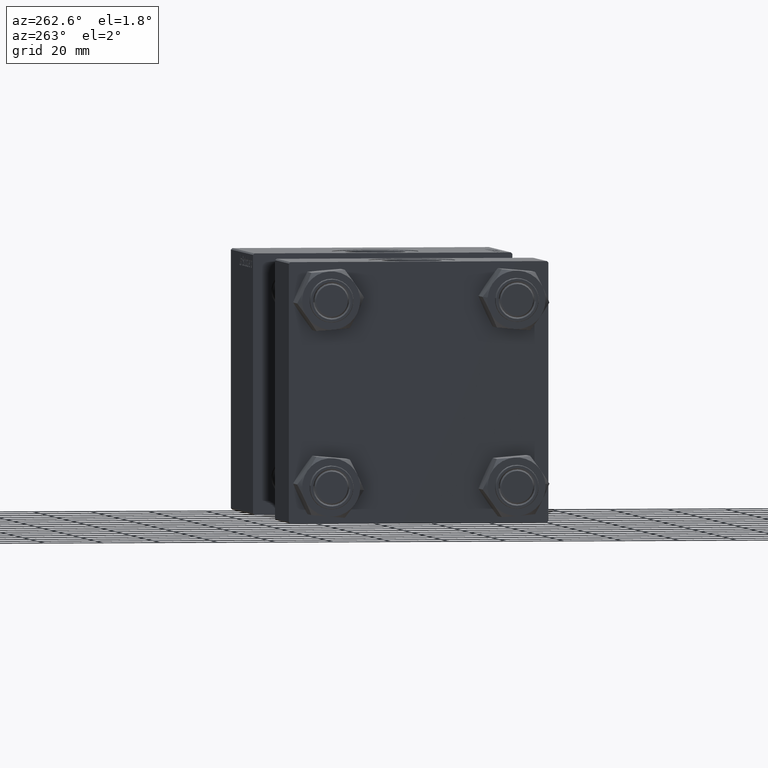
[diagram: clean part render]
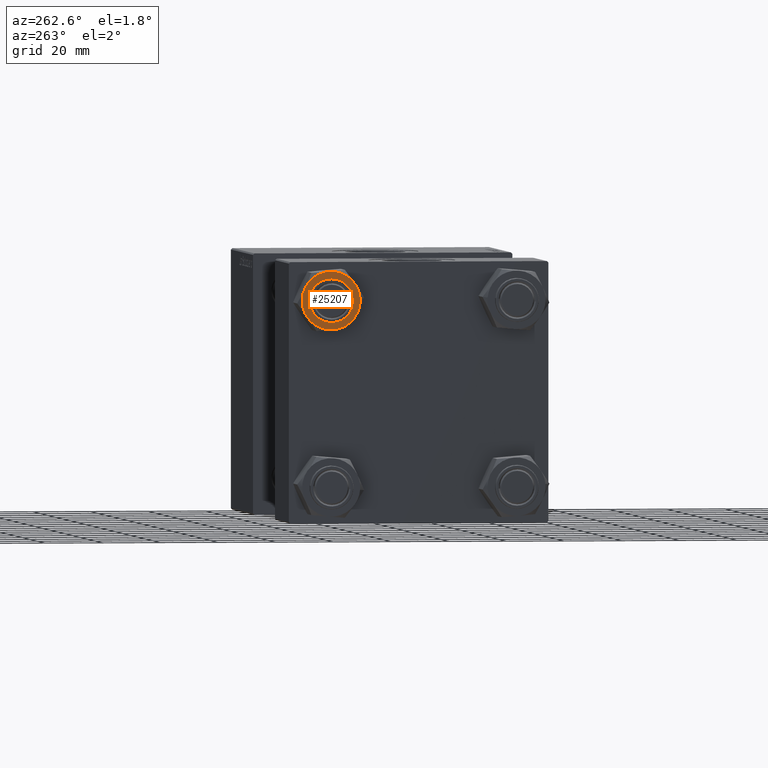
[diagram: same view with one face highlighted and labeled with its STEP entity id]
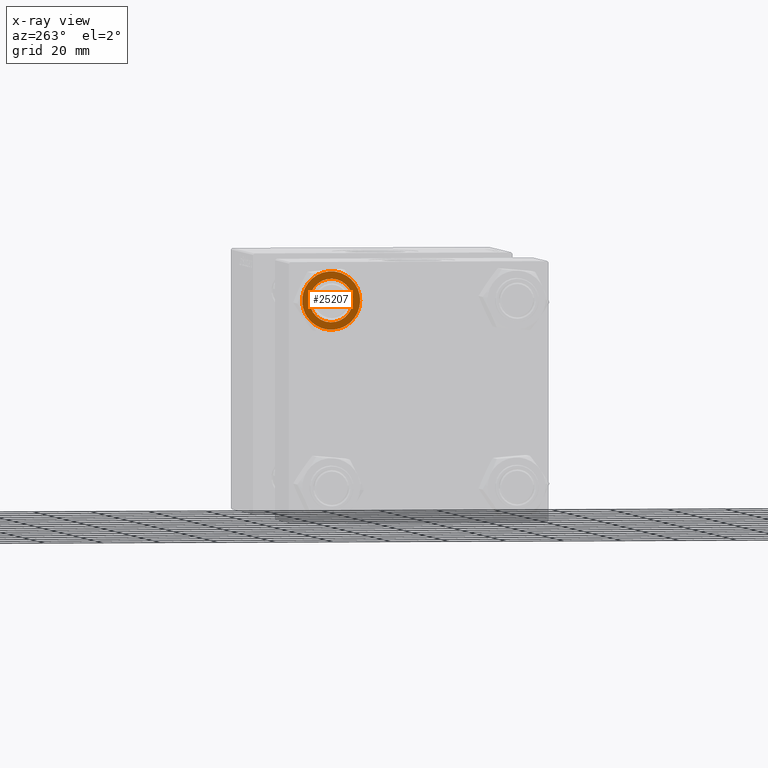
[diagram: x-ray of the same camera — body ghosted, the highlighted face saturated]
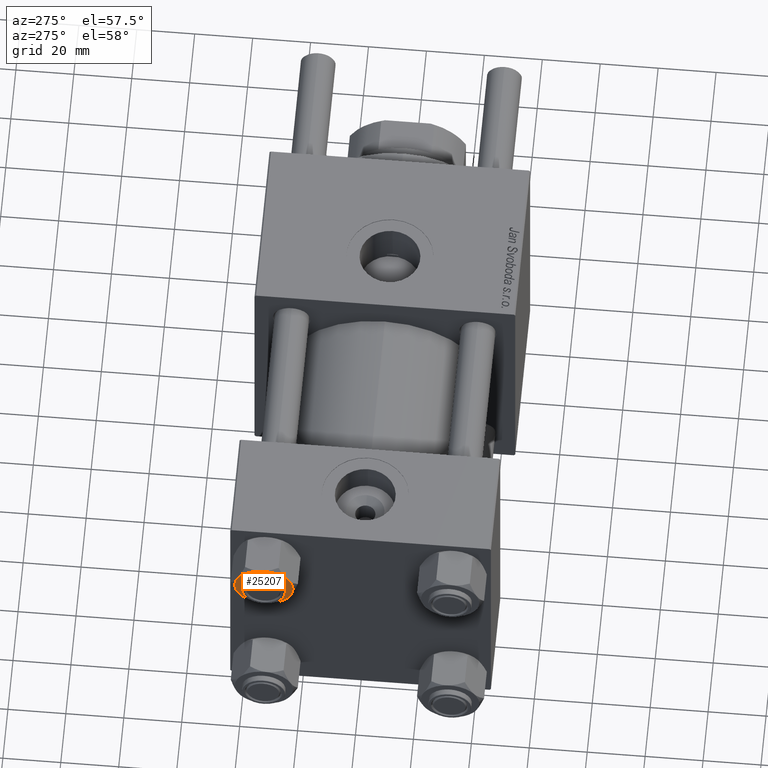
[diagram: same view with one face highlighted and labeled with its STEP entity id]
A machine part, auxiliary view. The second image highlights one B-rep face of the part: STEP entity #25207.
The next image is the same camera in x-ray: the body ghosted, the highlighted face saturated — about 0% of this face is hidden behind the body in this view.
A second angle (auxiliary view) of the same face is appended — the face is thin or edge-on in the first view.
In plain terms, the highlighted planar face has unit normal (1, -0, 0).
Its self-contained STEP definition (entity closure, byte-faithful):
#553 = CARTESIAN_POINT ( 'NONE',  ( 0.000000000000000000, 0.000000000000000000, 0.000000000000000000 ) ) ;
#707 = CARTESIAN_POINT ( 'NONE',  ( 0.000000000000000000, 0.000000000000000000, 0.000000000000000000 ) ) ;
#821 = ORIENTED_EDGE ( 'NONE', *, *, #52184, .T. ) ;
#1143 = AXIS2_PLACEMENT_3D ( 'NONE', #2854, #50996, #3431 ) ;
#2452 = DIRECTION ( 'NONE',  ( -1.000000000000000000, 0.000000000000000000, -0.000000000000000000 ) ) ;
#2854 = CARTESIAN_POINT ( 'NONE',  ( 0.000000000000000000, 0.000000000000000000, 0.000000000000000000 ) ) ;
#3181 = AXIS2_PLACEMENT_3D ( 'NONE', #22420, #13263, #47373 ) ;
#3431 = DIRECTION ( 'NONE',  ( -1.000000000000000000, 0.000000000000000000, 0.000000000000000000 ) ) ;
#4294 = DIRECTION ( 'NONE',  ( -1.000000000000000000, 0.000000000000000000, 0.000000000000000000 ) ) ;
#5294 = EDGE_LOOP ( 'NONE', ( #12454, #37392 ) ) ;
#5948 = EDGE_CURVE ( 'NONE', #15944, #46584, #15836, .T. ) ;
#6438 = VERTEX_POINT ( 'NONE', #7018 ) ;
#7018 = CARTESIAN_POINT ( 'NONE',  ( 0.000000000000000000, 10.06321519197518022, 0.000000000000000000 ) ) ;
#7144 = CARTESIAN_POINT ( 'NONE',  ( 0.000000000000000000, 0.000000000000000000, 0.000000000000000000 ) ) ;
#7376 = ORIENTED_EDGE ( 'NONE', *, *, #50941, .F. ) ;
#7517 = AXIS2_PLACEMENT_3D ( 'NONE', #553, #9717, #43834 ) ;
#9569 = CIRCLE ( 'NONE', #18685, 10.06321519197517844 ) ;
#9717 = DIRECTION ( 'NONE',  ( 0.000000000000000000, 0.000000000000000000, 1.000000000000000000 ) ) ;
#10322 = DIRECTION ( 'NONE',  ( 0.000000000000000000, -0.000000000000000000, -1.000000000000000000 ) ) ;
#10653 = ORIENTED_EDGE ( 'NONE', *, *, #22953, .F. ) ;
#10675 = VERTEX_POINT ( 'NONE', #33634 ) ;
#11406 = DIRECTION ( 'NONE',  ( -1.000000000000000000, 0.000000000000000000, 0.000000000000000000 ) ) ;
#11643 = CIRCLE ( 'NONE', #52808, 10.06321519197517844 ) ;
#12454 = ORIENTED_EDGE ( 'NONE', *, *, #40360, .F. ) ;
#12461 = VERTEX_POINT ( 'NONE', #23556 ) ;
#13263 = DIRECTION ( 'NONE',  ( 0.000000000000000000, 0.000000000000000000, 1.000000000000000000 ) ) ;
#14372 = CIRCLE ( 'NONE', #50955, 10.06321519197517844 ) ;
#14640 = DIRECTION ( 'NONE',  ( 0.000000000000000000, -0.000000000000000000, -1.000000000000000000 ) ) ;
#15738 = CIRCLE ( 'NONE', #1143, 10.06321519197517844 ) ;
#15836 = CIRCLE ( 'NONE', #32332, 10.06321519197517844 ) ;
#15944 = VERTEX_POINT ( 'NONE', #24360 ) ;
#17554 = DIRECTION ( 'NONE',  ( 1.000000000000000000, 0.000000000000000000, 0.000000000000000000 ) ) ;
#18524 = CIRCLE ( 'NONE', #7517, 7.500000000000000000 ) ;
#18685 = AXIS2_PLACEMENT_3D ( 'NONE', #24309, #37497, #11406 ) ;
#19462 = CIRCLE ( 'NONE', #55168, 7.500000000000000000 ) ;
#20268 = AXIS2_PLACEMENT_3D ( 'NONE', #707, #40525, #22762 ) ;
#21052 = FACE_BOUND ( 'NONE', #5294, .T. ) ;
#21282 = CARTESIAN_POINT ( 'NONE',  ( 0.000000000000000000, 0.000000000000000000, 0.000000000000000000 ) ) ;
#21929 = EDGE_CURVE ( 'NONE', #50845, #55905, #14372, .T. ) ;
#22219 = CARTESIAN_POINT ( 'NONE',  ( 8.715000000000003411, 5.031607595987588333, 0.000000000000000000 ) ) ;
#22240 = CARTESIAN_POINT ( 'NONE',  ( -7.500000000000000000, 0.000000000000000000, 0.000000000000000000 ) ) ;
#22420 = CARTESIAN_POINT ( 'NONE',  ( 0.000000000000000000, 0.000000000000000000, 0.000000000000000000 ) ) ;
#22762 = DIRECTION ( 'NONE',  ( -1.000000000000000000, 0.000000000000000000, 0.000000000000000000 ) ) ;
#22953 = EDGE_CURVE ( 'NONE', #10675, #6438, #11643, .T. ) ;
#23556 = CARTESIAN_POINT ( 'NONE',  ( 7.500000000000000000, 9.184850993605147944E-16, 0.000000000000000000 ) ) ;
#24309 = CARTESIAN_POINT ( 'NONE',  ( 0.000000000000000000, 0.000000000000000000, 0.000000000000000000 ) ) ;
#24360 = CARTESIAN_POINT ( 'NONE',  ( 1.502314598737159820E-15, -10.06321519197518022, 0.000000000000000000 ) ) ;
#25207 = ADVANCED_FACE ( 'NONE', ( #21052, #29086 ), #34240, .F. ) ;
#25352 = DIRECTION ( 'NONE',  ( 0.000000000000000000, 0.000000000000000000, -1.000000000000000000 ) ) ;
#29019 = CARTESIAN_POINT ( 'NONE',  ( 8.715000000000001634, -5.031607595987590997, 0.000000000000000000 ) ) ;
#29086 = FACE_OUTER_BOUND ( 'NONE', #47056, .T. ) ;
#29360 = CARTESIAN_POINT ( 'NONE',  ( 0.000000000000000000, 0.000000000000000000, 0.000000000000000000 ) ) ;
#29365 = VERTEX_POINT ( 'NONE', #22240 ) ;
#30934 = AXIS2_PLACEMENT_3D ( 'NONE', #29360, #25352, #2452 ) ;
#31808 = CARTESIAN_POINT ( 'NONE',  ( 10.06321519197517844, 0.000000000000000000, 0.000000000000000000 ) ) ;
#32115 = DIRECTION ( 'NONE',  ( -1.000000000000000000, 0.000000000000000000, 0.000000000000000000 ) ) ;
#32332 = AXIS2_PLACEMENT_3D ( 'NONE', #47843, #52134, #4294 ) ;
#32392 = DIRECTION ( 'NONE',  ( -1.000000000000000000, 0.000000000000000000, 0.000000000000000000 ) ) ;
#33634 = CARTESIAN_POINT ( 'NONE',  ( -8.715000000000001634, 5.031607595987591885, 0.000000000000000000 ) ) ;
#34240 = PLANE ( 'NONE',  #30934 ) ;
#35211 = CIRCLE ( 'NONE', #3181, 10.06321519197518022 ) ;
#35705 = CARTESIAN_POINT ( 'NONE',  ( -8.715000000000005187, -5.031607595987585668, 0.000000000000000000 ) ) ;
#37392 = ORIENTED_EDGE ( 'NONE', *, *, #41182, .F. ) ;
#37497 = DIRECTION ( 'NONE',  ( 0.000000000000000000, -0.000000000000000000, -1.000000000000000000 ) ) ;
#37704 = EDGE_CURVE ( 'NONE', #46584, #10675, #51406, .T. ) ;
#39440 = EDGE_CURVE ( 'NONE', #55905, #15944, #15738, .T. ) ;
#40360 = EDGE_CURVE ( 'NONE', #29365, #12461, #18524, .T. ) ;
#40525 = DIRECTION ( 'NONE',  ( 0.000000000000000000, -0.000000000000000000, -1.000000000000000000 ) ) ;
#41182 = EDGE_CURVE ( 'NONE', #12461, #29365, #19462, .T. ) ;
#42630 = ORIENTED_EDGE ( 'NONE', *, *, #21929, .F. ) ;
#43312 = ORIENTED_EDGE ( 'NONE', *, *, #5948, .F. ) ;
#43834 = DIRECTION ( 'NONE',  ( 1.000000000000000000, 0.000000000000000000, 0.000000000000000000 ) ) ;
#44721 = ORIENTED_EDGE ( 'NONE', *, *, #39440, .F. ) ;
#45838 = CARTESIAN_POINT ( 'NONE',  ( 0.000000000000000000, 0.000000000000000000, 0.000000000000000000 ) ) ;
#46584 = VERTEX_POINT ( 'NONE', #35705 ) ;
#47030 = ORIENTED_EDGE ( 'NONE', *, *, #37704, .F. ) ;
#47056 = EDGE_LOOP ( 'NONE', ( #10653, #47030, #43312, #44721, #42630, #7376, #821 ) ) ;
#47373 = DIRECTION ( 'NONE',  ( 1.000000000000000000, 0.000000000000000000, 0.000000000000000000 ) ) ;
#47843 = CARTESIAN_POINT ( 'NONE',  ( 0.000000000000000000, 0.000000000000000000, 0.000000000000000000 ) ) ;
#50845 = VERTEX_POINT ( 'NONE', #31808 ) ;
#50941 = EDGE_CURVE ( 'NONE', #54745, #50845, #9569, .T. ) ;
#50955 = AXIS2_PLACEMENT_3D ( 'NONE', #45838, #10322, #32392 ) ;
#50996 = DIRECTION ( 'NONE',  ( 0.000000000000000000, -0.000000000000000000, -1.000000000000000000 ) ) ;
#51406 = CIRCLE ( 'NONE', #20268, 10.06321519197517844 ) ;
#52134 = DIRECTION ( 'NONE',  ( 0.000000000000000000, -0.000000000000000000, -1.000000000000000000 ) ) ;
#52184 = EDGE_CURVE ( 'NONE', #54745, #6438, #35211, .T. ) ;
#52808 = AXIS2_PLACEMENT_3D ( 'NONE', #7144, #14640, #32115 ) ;
#53063 = DIRECTION ( 'NONE',  ( 0.000000000000000000, 0.000000000000000000, 1.000000000000000000 ) ) ;
#54745 = VERTEX_POINT ( 'NONE', #22219 ) ;
#55168 = AXIS2_PLACEMENT_3D ( 'NONE', #21282, #53063, #17554 ) ;
#55905 = VERTEX_POINT ( 'NONE', #29019 ) ;